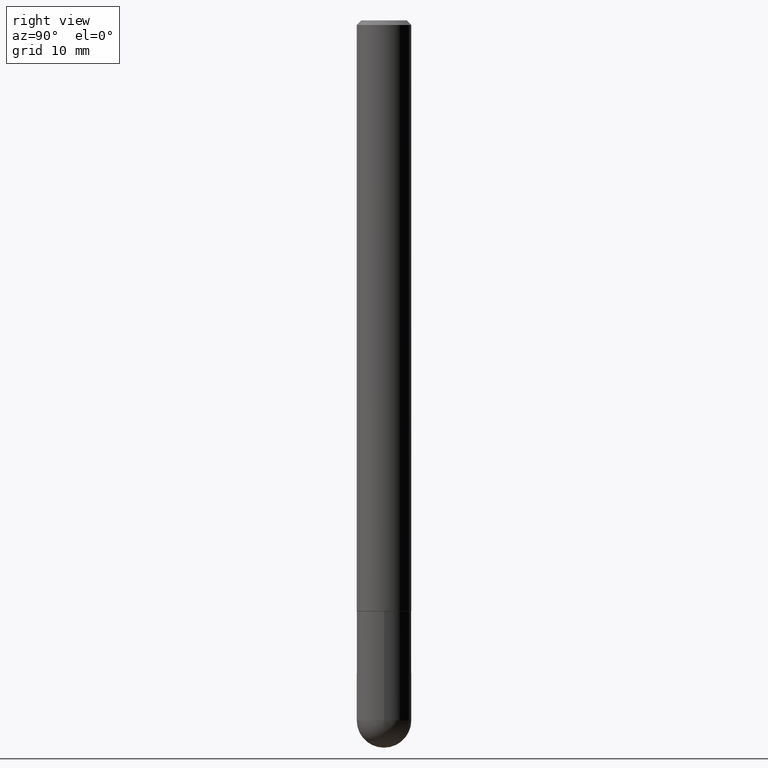
[diagram: clean part render]
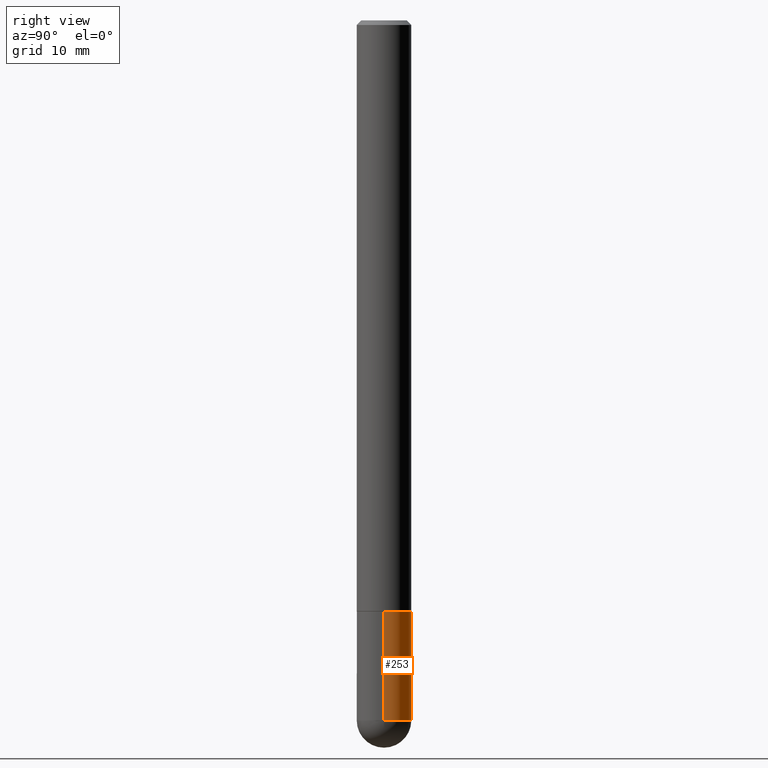
[diagram: same view with one face highlighted and labeled with its STEP entity id]
A machine part, right view. The second image highlights one B-rep face of the part: STEP entity #253.
In plain terms, the highlighted cylindrical surface (edge-blend (fillet) strip) has radius 2.9997 mm, axis along (-0, 0, 1).
Its self-contained STEP definition (entity closure, byte-faithful):
#3 = VERTEX_POINT ( 'NONE', #373 ) ;
#10 = DIRECTION ( 'NONE',  ( -2.445468806185136597E-29, 3.491481338843145583E-15, 1.000000000000000000 ) ) ;
#11 = VERTEX_POINT ( 'NONE', #139 ) ;
#13 = EDGE_CURVE ( 'NONE', #239, #385, #41, .T. ) ;
#15 = EDGE_CURVE ( 'NONE', #356, #11, #142, .T. ) ;
#21 = AXIS2_PLACEMENT_3D ( 'NONE', #244, #284, #176 ) ;
#22 = LINE ( 'NONE', #310, #307 ) ;
#23 = AXIS2_PLACEMENT_3D ( 'NONE', #315, #10, #33 ) ;
#28 = DIRECTION ( 'NONE',  ( -2.445468806185136877E-29, 3.491481338843145188E-15, 1.000000000000000000 ) ) ;
#33 = DIRECTION ( 'NONE',  ( 1.000000000000000000, -6.982962677686266711E-15, 4.876176775795935793E-29 ) ) ;
#39 = CYLINDRICAL_SURFACE ( 'NONE', #23, 0.1181000000000000383 ) ;
#40 = EDGE_LOOP ( 'NONE', ( #271, #391, #127, #267, #165 ) ) ;
#41 = CIRCLE ( 'NONE', #21, 0.1181000000000000383 ) ;
#50 = CARTESIAN_POINT ( 'NONE',  ( -0.1181000000000000383, 8.391509709326785915E-16, -5.809262341591045886E-30 ) ) ;
#61 = CARTESIAN_POINT ( 'NONE',  ( 7.413438685950241710E-29, -1.058442567870299344E-14, -3.031499999999999417 ) ) ;
#68 = DIRECTION ( 'NONE',  ( 1.000000000000000000, -6.982962677686270655E-15, 0.000000000000000000 ) ) ;
#118 = DIRECTION ( 'NONE',  ( -2.445468806185136877E-29, 3.491481338843145188E-15, 1.000000000000000000 ) ) ;
#127 = ORIENTED_EDGE ( 'NONE', *, *, #187, .F. ) ;
#134 = AXIS2_PLACEMENT_3D ( 'NONE', #228, #224, #68 ) ;
#139 = CARTESIAN_POINT ( 'NONE',  ( -0.1181000000000000383, -8.920412241468623652E-15, -2.559000000000000163 ) ) ;
#142 = LINE ( 'NONE', #50, #287 ) ;
#165 = ORIENTED_EDGE ( 'NONE', *, *, #13, .T. ) ;
#168 = EDGE_CURVE ( 'NONE', #239, #3, #22, .T. ) ;
#173 = EDGE_CURVE ( 'NONE', #385, #356, #398, .T. ) ;
#176 = DIRECTION ( 'NONE',  ( 1.000000000000000000, -6.982962677686270655E-15, 0.000000000000000000 ) ) ;
#184 = DIRECTION ( 'NONE',  ( 1.000000000000000000, -6.982962677686270655E-15, 0.000000000000000000 ) ) ;
#187 = EDGE_CURVE ( 'NONE', #3, #11, #317, .T. ) ;
#189 = FACE_OUTER_BOUND ( 'NONE', #40, .T. ) ;
#221 = AXIS2_PLACEMENT_3D ( 'NONE', #61, #340, #184 ) ;
#224 = DIRECTION ( 'NONE',  ( -2.445468806185136597E-29, 3.491481338843145583E-15, 1.000000000000000000 ) ) ;
#228 = CARTESIAN_POINT ( 'NONE',  ( 6.257954675027765161E-29, -8.934700746099610252E-15, -2.559000000000000163 ) ) ;
#239 = VERTEX_POINT ( 'NONE', #386 ) ;
#244 = CARTESIAN_POINT ( 'NONE',  ( 7.413438685950241710E-29, -1.058442567870299344E-14, -3.031499999999999417 ) ) ;
#253 = ADVANCED_FACE ( 'NONE', ( #189 ), #39, .T. ) ;
#267 = ORIENTED_EDGE ( 'NONE', *, *, #168, .F. ) ;
#271 = ORIENTED_EDGE ( 'NONE', *, *, #173, .T. ) ;
#272 = CARTESIAN_POINT ( 'NONE',  ( 8.246878922348216267E-16, 0.1180999999999893246, -3.031500000000000306 ) ) ;
#284 = DIRECTION ( 'NONE',  ( -2.445468806185136597E-29, 3.491481338843145583E-15, 1.000000000000000000 ) ) ;
#287 = VECTOR ( 'NONE', #118, 39.37007874015748143 ) ;
#307 = VECTOR ( 'NONE', #28, 39.37007874015748143 ) ;
#310 = CARTESIAN_POINT ( 'NONE',  ( 0.1181000000000000383, -8.246878922347483612E-16, 5.758764772215001842E-30 ) ) ;
#315 = CARTESIAN_POINT ( 'NONE',  ( 0.000000000000000000, 0.000000000000000000, 0.000000000000000000 ) ) ;
#317 = CIRCLE ( 'NONE', #134, 0.1181000000000000383 ) ;
#340 = DIRECTION ( 'NONE',  ( -2.445468806185136597E-29, 3.491481338843145583E-15, 1.000000000000000000 ) ) ;
#356 = VERTEX_POINT ( 'NONE', #358 ) ;
#358 = CARTESIAN_POINT ( 'NONE',  ( -0.1181000000000000383, -8.920412241468623652E-15, -3.031499999999999417 ) ) ;
#373 = CARTESIAN_POINT ( 'NONE',  ( 0.1181000000000000383, -9.759388638334360093E-15, -2.559000000000000163 ) ) ;
#385 = VERTEX_POINT ( 'NONE', #272 ) ;
#386 = CARTESIAN_POINT ( 'NONE',  ( 0.1181000000000000383, -1.058425110463605090E-14, -3.031499999999999417 ) ) ;
#391 = ORIENTED_EDGE ( 'NONE', *, *, #15, .T. ) ;
#398 = CIRCLE ( 'NONE', #221, 0.1181000000000000383 ) ;